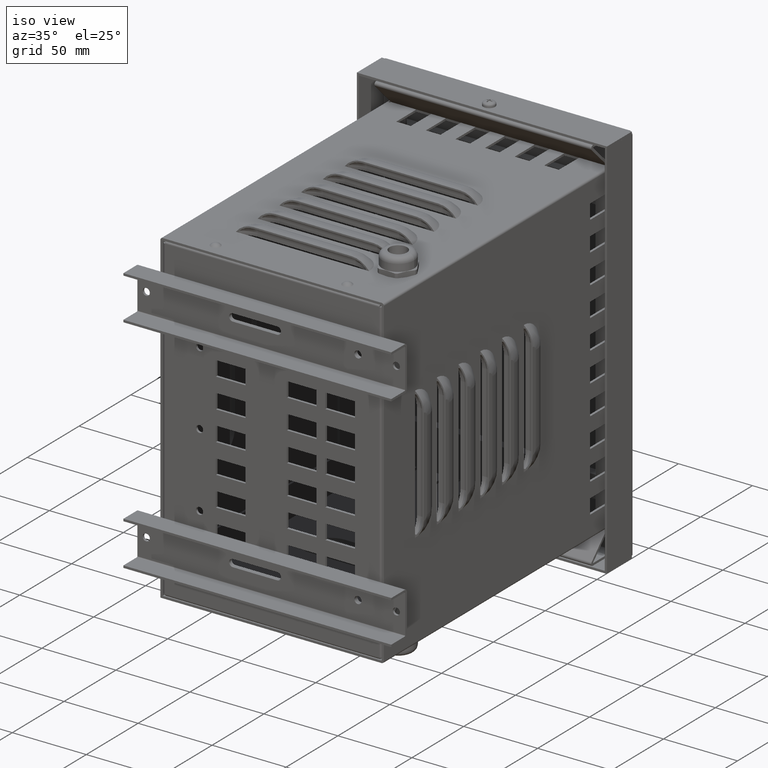
[diagram: clean part render]
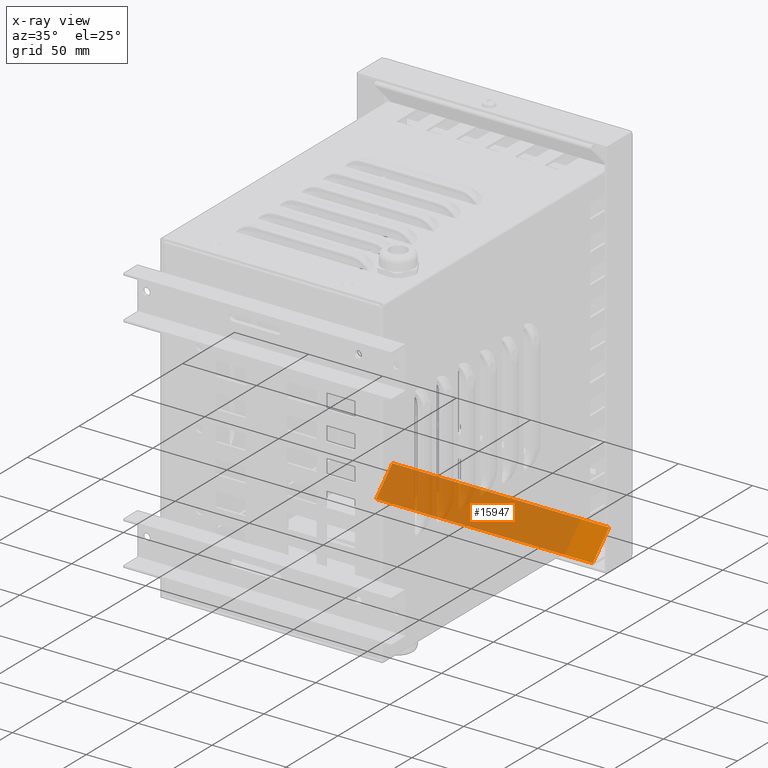
[diagram: x-ray — body ghosted, one internal face saturated and labeled with its STEP entity id]
A machine part, iso view, then the same camera in x-ray: the body is ghosted and one INTERNAL B-rep face — a face not visible from any outside direction — is saturated and labeled: STEP entity #15947.
In plain terms, the highlighted planar face has unit normal (0, 0.7071, -0.7071).
Its self-contained STEP definition (entity closure, byte-faithful):
#618=PLANE('',#17076);
#1967=FACE_OUTER_BOUND('',#2828,.T.);
#2828=EDGE_LOOP('',(#11548,#11549,#11550,#11551));
#3981=LINE('',#23196,#5534);
#4002=LINE('',#23245,#5555);
#4013=LINE('',#23264,#5566);
#4022=LINE('',#23285,#5575);
#5534=VECTOR('',#18733,10.);
#5555=VECTOR('',#18766,10.);
#5566=VECTOR('',#18783,0.66099999999998);
#5575=VECTOR('',#18806,10.);
#7699=VERTEX_POINT('',#23181);
#7700=VERTEX_POINT('',#23185);
#7722=VERTEX_POINT('',#23243);
#7723=VERTEX_POINT('',#23244);
#9150=EDGE_CURVE('',#7700,#7699,#3981,.T.);
#9171=EDGE_CURVE('',#7722,#7723,#4002,.T.);
#9184=EDGE_CURVE('',#7699,#7723,#4013,.T.);
#9195=EDGE_CURVE('',#7722,#7700,#4022,.T.);
#11548=ORIENTED_EDGE('',*,*,#9171,.T.);
#11549=ORIENTED_EDGE('',*,*,#9184,.F.);
#11550=ORIENTED_EDGE('',*,*,#9150,.F.);
#11551=ORIENTED_EDGE('',*,*,#9195,.F.);
#15947=ADVANCED_FACE('',(#1967),#618,.T.);
#17076=AXIS2_PLACEMENT_3D('',#23286,#18807,#18808);
#18733=DIRECTION('',(1.,8.1010575271671E-15,-1.95576829509933E-14));
#18766=DIRECTION('',(1.,8.09959080261537E-15,-1.95562162264416E-14));
#18783=DIRECTION('',(8.1010575271671E-15,0.707106781169721,0.707106781203375));
#18806=DIRECTION('',(-8.1010575271671E-15,-0.70710678116972,-0.707106781203375));
#18807=DIRECTION('center_axis',(-1.955560868924E-14,0.707106781203375,-0.70710678116972));
#18808=DIRECTION('ref_axis',(1.,8.09959080261537E-15,-1.95562162264416E-14));
#23181=CARTESIAN_POINT('',(149.498999999986,203.737958246666,-16.8847763112195));
#23185=CARTESIAN_POINT('',(2.99999999998927,203.737958246665,-16.8847763112166));
#23196=CARTESIAN_POINT('',(2.99999999998927,203.737958246665,-16.8847763112166));
#23243=CARTESIAN_POINT('',(2.99999999998946,219.560367278588,-1.06236727854053));
#23244=CARTESIAN_POINT('',(149.498999999986,219.560367278589,-1.06236727854339));
#23245=CARTESIAN_POINT('',(76.2494999999875,219.560367278589,-1.06236727854197));
#23264=CARTESIAN_POINT('',(149.498999999986,221.028740089613,0.406005532550751));
#23285=CARTESIAN_POINT('',(2.99999999998946,219.560367278586,-1.06236727854261));
#23286=CARTESIAN_POINT('Origin',(76.2494999999875,212.199802566755,-8.42293199072547));